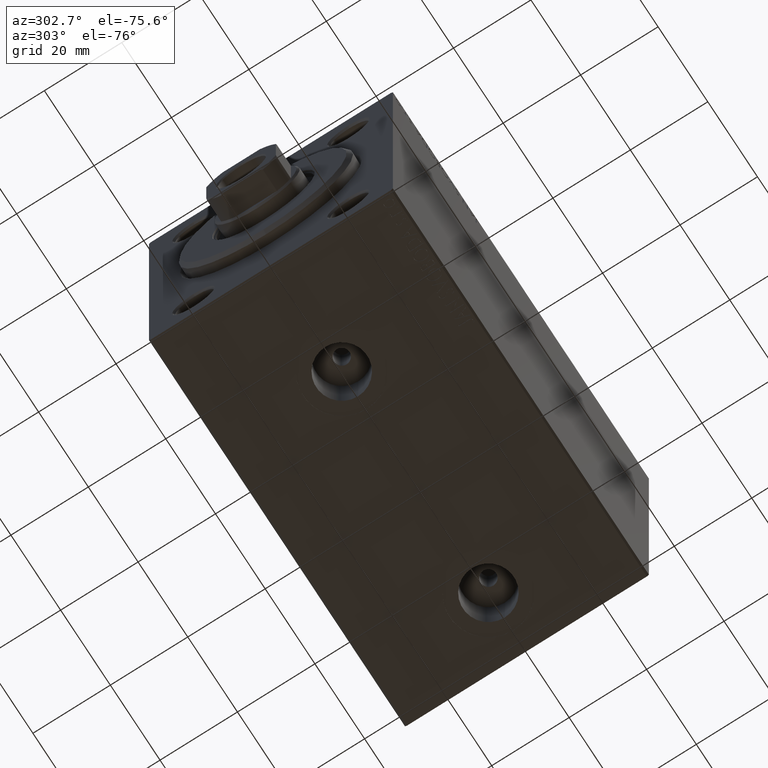
[diagram: clean part render]
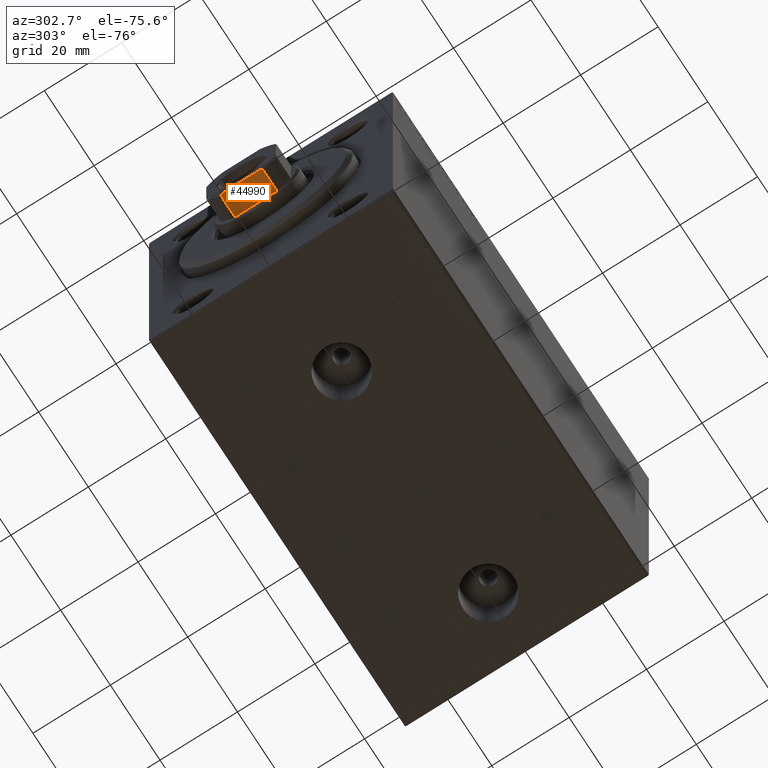
[diagram: same view with one face highlighted and labeled with its STEP entity id]
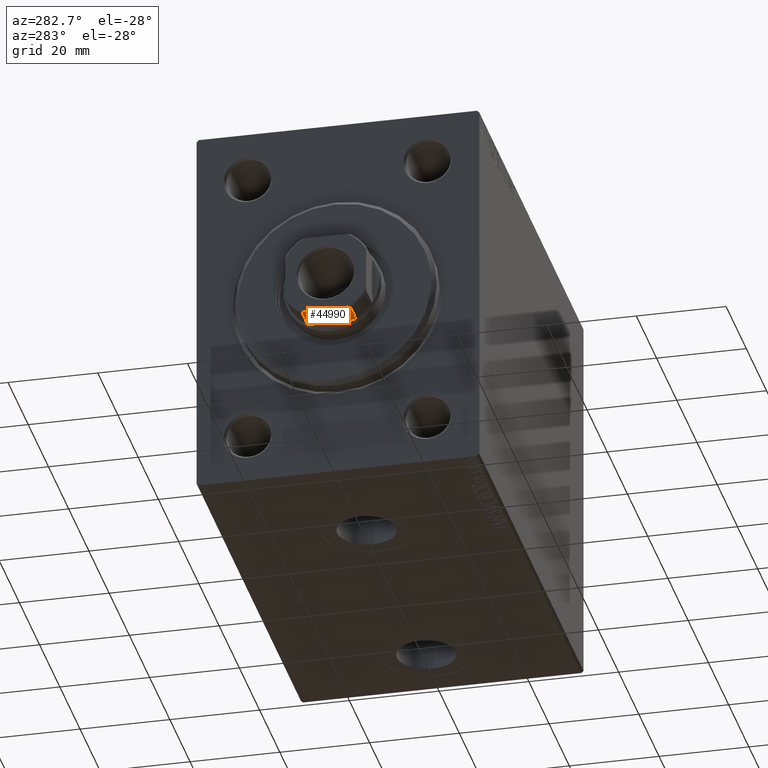
[diagram: same view with one face highlighted and labeled with its STEP entity id]
A machine part, auxiliary view. The second image highlights one B-rep face of the part: STEP entity #44990.
A second angle (auxiliary view) of the same face is appended — the face is thin or edge-on in the first view.
In plain terms, the highlighted planar face has unit normal (0, 0, 1).
Its self-contained STEP definition (entity closure, byte-faithful):
#26 = DIRECTION ( 'NONE',  ( -1.927470528863119049E-16, 1.000000000000000000, 0.000000000000000000 ) ) ;
#28 = B_SPLINE_CURVE_WITH_KNOTS ( 'NONE', 3,
 ( #23980, #19830, #33894, #9921 ),
 .UNSPECIFIED., .F., .F.,
 ( 4, 4 ),
 ( 0.000000000000000000, 0.0006782784334759201297 ),
 .UNSPECIFIED. ) ;
#224 = DIRECTION ( 'NONE',  ( -0.000000000000000000, -0.000000000000000000, 1.000000000000000000 ) ) ;
#269 = CARTESIAN_POINT ( 'NONE',  ( -9.000000000000001776, 8.999999999999998224, 103.0000000000000142 ) ) ;
#931 = ORIENTED_EDGE ( 'NONE', *, *, #2416, .F. ) ;
#1831 = VERTEX_POINT ( 'NONE', #15540 ) ;
#2416 = EDGE_CURVE ( 'NONE', #39995, #38563, #10153, .T. ) ;
#3814 = DIRECTION ( 'NONE',  ( 1.927470528863119049E-16, -1.000000000000000000, 0.000000000000000000 ) ) ;
#4183 = CARTESIAN_POINT ( 'NONE',  ( -8.999999999999998224, -4.799999999999978506, 103.0000000000000142 ) ) ;
#6473 = VECTOR ( 'NONE', #3814, 1000.000000000000000 ) ;
#6679 = CARTESIAN_POINT ( 'NONE',  ( -8.999999999999998224, 5.408326913195988794, -0.001000000000001000089 ) ) ;
#7668 = PLANE ( 'NONE',  #37038 ) ;
#7789 = EDGE_CURVE ( 'NONE', #39995, #28681, #35829, .T. ) ;
#7976 = CARTESIAN_POINT ( 'NONE',  ( -8.999999999999998224, 5.408326913195991459, 97.00000000000004263 ) ) ;
#8775 = ORIENTED_EDGE ( 'NONE', *, *, #24459, .T. ) ;
#9304 = CARTESIAN_POINT ( 'NONE',  ( -9.000000000000000000, -5.408326913195987018, 102.6999999999999886 ) ) ;
#9757 = VECTOR ( 'NONE', #42631, 1000.000000000000000 ) ;
#9921 = CARTESIAN_POINT ( 'NONE',  ( -8.999999999999998224, 5.408326913195988794, 102.7000000000000171 ) ) ;
#10153 = LINE ( 'NONE', #6679, #17742 ) ;
#10524 = ORIENTED_EDGE ( 'NONE', *, *, #13203, .T. ) ;
#10558 = CARTESIAN_POINT ( 'NONE',  ( -8.999999999999998224, 5.408326913195988794, 102.7000000000000171 ) ) ;
#13203 = EDGE_CURVE ( 'NONE', #37937, #21470, #41857, .T. ) ;
#13736 = CARTESIAN_POINT ( 'NONE',  ( -9.000000000000001776, 8.999999999999998224, 103.0000000000000142 ) ) ;
#15103 = EDGE_CURVE ( 'NONE', #28681, #37937, #31596, .T. ) ;
#15540 = CARTESIAN_POINT ( 'NONE',  ( -9.000000000000001776, 4.800000000000007816, 103.0000000000000142 ) ) ;
#17742 = VECTOR ( 'NONE', #224, 1000.000000000000000 ) ;
#18036 = DIRECTION ( 'NONE',  ( 1.000000000000000000, 1.927470528863119049E-16, -0.000000000000000000 ) ) ;
#19830 = CARTESIAN_POINT ( 'NONE',  ( -9.000000000000001776, 5.004607318780306180, 102.9037142029269347 ) ) ;
#21470 = VERTEX_POINT ( 'NONE', #27643 ) ;
#21719 = CARTESIAN_POINT ( 'NONE',  ( -9.000000000000000000, -5.408326913195987018, 102.6999999999999886 ) ) ;
#22934 = ORIENTED_EDGE ( 'NONE', *, *, #15103, .T. ) ;
#23128 = CARTESIAN_POINT ( 'NONE',  ( -9.000000000000001776, 8.999999999999998224, 97.00000000000000000 ) ) ;
#23980 = CARTESIAN_POINT ( 'NONE',  ( -9.000000000000001776, 4.800000000000007816, 103.0000000000000142 ) ) ;
#24459 = EDGE_CURVE ( 'NONE', #1831, #38563, #28, .T. ) ;
#24494 = FACE_OUTER_BOUND ( 'NONE', #44510, .T. ) ;
#24525 = CARTESIAN_POINT ( 'NONE',  ( -9.000000000000000000, -5.408326913195987018, 97.00000000000005684 ) ) ;
#27643 = CARTESIAN_POINT ( 'NONE',  ( -8.999999999999998224, -4.799999999999978506, 103.0000000000000142 ) ) ;
#28681 = VERTEX_POINT ( 'NONE', #24525 ) ;
#28721 = LINE ( 'NONE', #13736, #6473 ) ;
#29214 = ORIENTED_EDGE ( 'NONE', *, *, #7789, .T. ) ;
#31596 = LINE ( 'NONE', #42411, #9757 ) ;
#33281 = DIRECTION ( 'NONE',  ( 1.927470528863119049E-16, -1.000000000000000000, 0.000000000000000000 ) ) ;
#33554 = EDGE_CURVE ( 'NONE', #1831, #21470, #28721, .T. ) ;
#33894 = CARTESIAN_POINT ( 'NONE',  ( -9.000000000000001776, 5.207299490555476140, 102.8035449543006905 ) ) ;
#35773 = CARTESIAN_POINT ( 'NONE',  ( -8.999999999999998224, -5.004607318780291969, 102.9037142029269205 ) ) ;
#35829 = LINE ( 'NONE', #23128, #39846 ) ;
#35993 = CARTESIAN_POINT ( 'NONE',  ( -9.000000000000000000, -5.207299490555465482, 102.8035449543006763 ) ) ;
#37038 = AXIS2_PLACEMENT_3D ( 'NONE', #269, #18036, #26 ) ;
#37937 = VERTEX_POINT ( 'NONE', #9304 ) ;
#38563 = VERTEX_POINT ( 'NONE', #10558 ) ;
#39846 = VECTOR ( 'NONE', #33281, 1000.000000000000000 ) ;
#39995 = VERTEX_POINT ( 'NONE', #7976 ) ;
#40542 = ORIENTED_EDGE ( 'NONE', *, *, #33554, .F. ) ;
#41857 = B_SPLINE_CURVE_WITH_KNOTS ( 'NONE', 3,
 ( #21719, #35993, #35773, #4183 ),
 .UNSPECIFIED., .F., .F.,
 ( 4, 4 ),
 ( 0.000000000000000000, 0.0006782784334759558000 ),
 .UNSPECIFIED. ) ;
#42411 = CARTESIAN_POINT ( 'NONE',  ( -9.000000000000000000, -5.408326913195987018, -0.001000000000001000089 ) ) ;
#42631 = DIRECTION ( 'NONE',  ( -0.000000000000000000, -0.000000000000000000, 1.000000000000000000 ) ) ;
#44510 = EDGE_LOOP ( 'NONE', ( #22934, #10524, #40542, #8775, #931, #29214 ) ) ;
#44990 = ADVANCED_FACE ( 'NONE', ( #24494 ), #7668, .F. ) ;